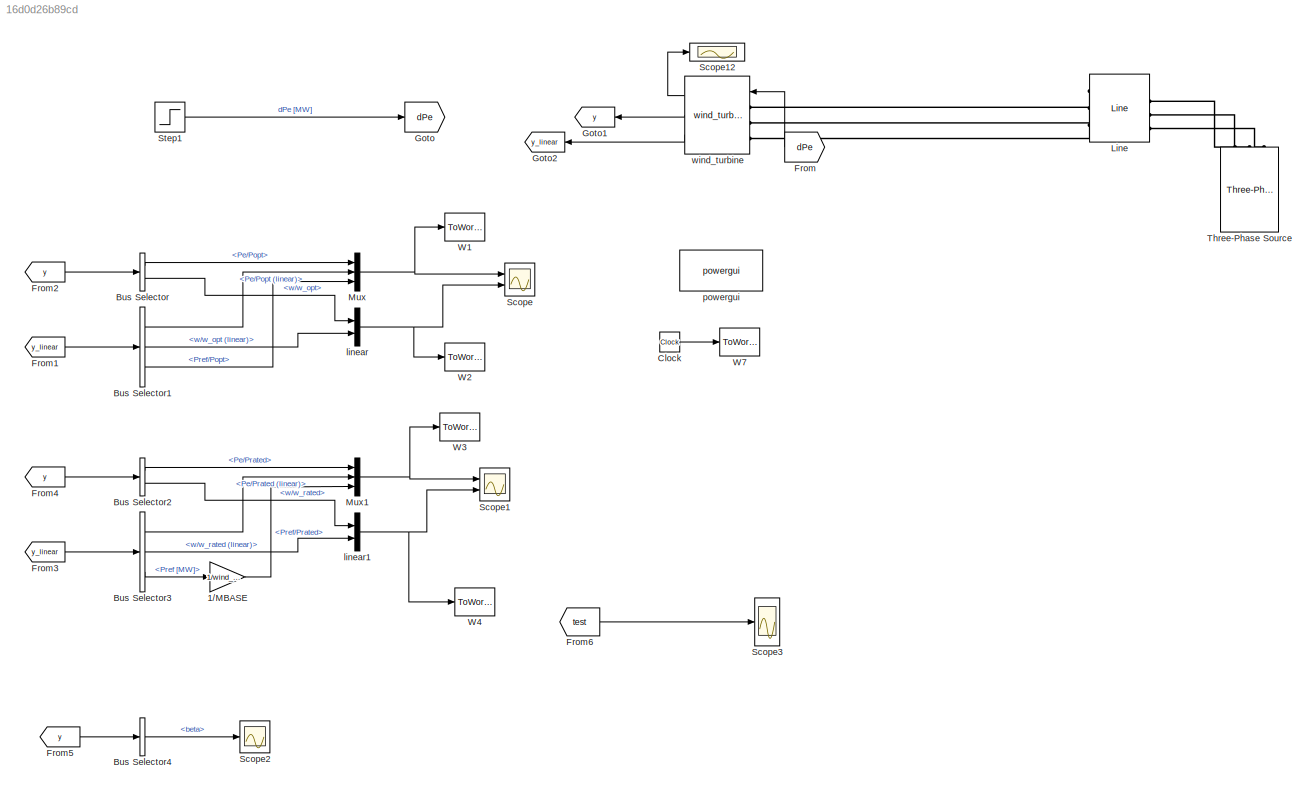
MODEL slx_16d0d26b89cd
KIND model
CONFIG AbsTol = 1e-1
CONFIG EnableMultiTasking = on
CONFIG FixedStep = auto
CONFIG MaxStep = 1/60
CONFIG MinStep = auto
CONFIG PreLoadFcn = %load_Nordic32_data;\n
CONFIG RelTol = 1e-2
CONFIG SampleTimeConstraint = Unconstrained
CONFIG Solver = ode15s
CONFIG SolverName = ode15s
CONFIG StartTime = 0.0
CONFIG StopTime = 200
BLOCK [Gain] 1//MBASE
  Gain = 1/wind_turbines.MBASE(1)
BLOCK [BusSelector] Bus Selector
  OutputSignals = Pe/Popt,w/w_opt
  Ports = [1, 2]
BLOCK [BusSelector] Bus Selector1
  OutputSignals = Pe/Popt (linear),w/w_opt (linear),Pref/Popt
  Ports = [1, 3]
BLOCK [BusSelector] Bus Selector2
  OutputSignals = Pe/Prated,w/w_rated
  Ports = [1, 2]
BLOCK [BusSelector] Bus Selector3
  OutputSignals = Pe/Prated (linear),w/w_rated (linear),Pref [MW]
  Ports = [1, 3]
BLOCK [BusSelector] Bus Selector4
  OutputSignals = beta
  Ports = [1, 1]
BLOCK [Clock] Clock
BLOCK [From] From
  GotoTag = dPe
  NameLocation = top
BLOCK [From] From1
  GotoTag = y_linear
  NameLocation = top
BLOCK [From] From2
  GotoTag = y
  NameLocation = top
BLOCK [From] From3
  GotoTag = y_linear
  NameLocation = top
BLOCK [From] From4
  GotoTag = y
  NameLocation = top
BLOCK [From] From5
  GotoTag = y
  NameLocation = top
BLOCK [From] From6
  GotoTag = test
BLOCK [Goto] Goto
  GotoTag = dPe
BLOCK [Goto] Goto1
  GotoTag = y
  NameLocation = top
BLOCK [Goto] Goto2
  GotoTag = y_linear
  NameLocation = top
BLOCK [Reference] Line  REF=Nordic32_Lib/Line
  Ports = [0, 1, 0, 0, 0, 3, 3]
  SourceBlock = Nordic32_Lib/Line
BLOCK [Mux] Mux
  DisplayOption = bar
  Inputs = 3
  Ports = [3, 1]
BLOCK [Mux] Mux1
  DisplayOption = bar
  Inputs = 3
  Ports = [3, 1]
BLOCK [Scope] Scope
  Floating = off
  NumInputPorts = 2
  Ports = [2]
  ScopeSpecificationString = Simulink.scopes.TimeScopeBlockCfg('CurrentConfiguration', extmgr.ConfigurationSet(extmgr.Configuration('Core','General UI',true),extmgr.Configuration('Core','Source UI',true),extmgr.Configuration('Sources','WiredSimulink',true,'DataLoggingVariableName','ScopeData1'),extmgr.Configuration('Visuals','Time Domain',true,'SerializedDisplays',{struct('MinYLimReal','-2.42569','MaxYLimReal','4.62613','YLab...<+2114ch>
BLOCK [Scope] Scope1
  Floating = off
  NumInputPorts = 2
  Ports = [2]
  ScopeSpecificationString = Simulink.scopes.TimeScopeBlockCfg('CurrentConfiguration', extmgr.ConfigurationSet(extmgr.Configuration('Core','General UI',true),extmgr.Configuration('Core','Source UI',true),extmgr.Configuration('Sources','WiredSimulink',true,'DataLoggingVariableName','ScopeData2'),extmgr.Configuration('Visuals','Time Domain',true,'SerializedDisplays',{struct('MinYLimReal','-88918.25778','MaxYLimReal','89004.4350...<+2124ch>
BLOCK [Scope] Scope12
  Floating = off
  NumInputPorts = 1
  Ports = [1]
  ScopeSpecificationString = Simulink.scopes.TimeScopeBlockCfg('CurrentConfiguration', extmgr.ConfigurationSet(extmgr.Configuration('Core','General UI',true),extmgr.Configuration('Core','Source UI',true),extmgr.Configuration('Sources','WiredSimulink',true,'DataLoggingVariableName','ScopeData4'),extmgr.Configuration('Visuals','Time Domain',true,'SerializedDisplays',{struct('MinYLimReal','5.1257','MaxYLimReal','13.24515','YLabe...<+1408ch>
BLOCK [Scope] Scope2
  Floating = off
  NumInputPorts = 1
  Ports = [1]
  ScopeSpecificationString = Simulink.scopes.TimeScopeBlockCfg('CurrentConfiguration', extmgr.ConfigurationSet(extmgr.Configuration('Core','General UI',true),extmgr.Configuration('Core','Source UI',true),extmgr.Configuration('Sources','WiredSimulink',true,'DataLoggingVariableName','ScopeData3'),extmgr.Configuration('Visuals','Time Domain',true,'SerializedDisplays',{struct('MinYLimReal','-1.00000','MaxYLimReal','1.00000','YLab...<+1396ch>
BLOCK [Scope] Scope3
  Floating = off
  NumInputPorts = 1
  Ports = [1]
  ScopeSpecificationString = Simulink.scopes.TimeScopeBlockCfg('CurrentConfiguration', extmgr.ConfigurationSet(extmgr.Configuration('Core','General UI',true),extmgr.Configuration('Core','Source UI',true),extmgr.Configuration('Sources','WiredSimulink',true,'DataLoggingVariableName','ScopeData1'),extmgr.Configuration('Visuals','Time Domain',true,'SerializedDisplays',{struct('MinYLimReal','-1007.71729','MaxYLimReal','9068.97296'...<+1389ch>
BLOCK [Step] Step1
  After = 1-pstep
  Before = 1
  SampleTime = 0
  Time = time_event
BLOCK [Reference] Three-Phase Source  REF=powerlib/Electrical
Sources/Three-Phase Source
  NameLocation = right
  Ports = [0, 0, 0, 0, 0, 0, 3]
  SourceBlock = powerlib/Electrical\nSources/Three-Phase Source
  SourceProductBaseCode = PS
  SourceType = Three-Phase Source
BLOCK [ToWorkspace] W1
  MaxDataPoints = inf
  Ports = [1]
  SampleTime = 1/60
  VariableName = Pe
BLOCK [ToWorkspace] W2
  MaxDataPoints = inf
  Ports = [1]
  SampleTime = 1/60
  VariableName = w_rot
BLOCK [ToWorkspace] W3
  MaxDataPoints = inf
  Ports = [1]
  SampleTime = 1/60
  VariableName = Pe_abs
BLOCK [ToWorkspace] W4
  MaxDataPoints = inf
  Ports = [1]
  SampleTime = 1/60
  VariableName = w_rot_abs
BLOCK [ToWorkspace] W7
  MaxDataPoints = inf
  Ports = [1]
  SampleTime = 1/60
  VariableName = t
BLOCK [Mux] linear
  DisplayOption = bar
  Inputs = 2
  Ports = [2, 1]
BLOCK [Mux] linear1
  DisplayOption = bar
  Inputs = 2
  Ports = [2, 1]
BLOCK [Reference] powergui  REF=powerlib/powergui
  Ports = []
  Priority = 2
  SourceBlock = powerlib/powergui
  SourceProductBaseCode = PS
  SourceType = PSB option menu block
BLOCK [Reference] wind_turbine  REF=Nordic32_Lib/wind_turbine
  Ports = [1, 3, 0, 0, 0, 3]
  SourceBlock = Nordic32_Lib/wind_turbine
LINE 1//MBASE:1 -> Mux1:3
LINE Bus Selector1:1 -> Mux:2
LINE Bus Selector1:2 -> linear:2
LINE Bus Selector1:3 -> Mux:3
LINE Bus Selector2:1 -> Mux1:1
LINE Bus Selector2:2 -> linear1:1
LINE Bus Selector3:1 -> Mux1:2
LINE Bus Selector3:2 -> linear1:2
LINE Bus Selector3:3 -> 1//MBASE:1
LINE Bus Selector4:1 -> Scope2:1
LINE Bus Selector:1 -> Mux:1
LINE Bus Selector:2 -> linear:1
LINE Clock:1 -> W7:1
LINE From1:1 -> Bus Selector1:1
LINE From2:1 -> Bus Selector:1
LINE From3:1 -> Bus Selector3:1
LINE From4:1 -> Bus Selector2:1
LINE From5:1 -> Bus Selector4:1
LINE From6:1 -> Scope3:1
LINE From:1 -> wind_turbine:1
NET Mux1:1 -> Scope1:1, W3:1
NET Mux:1 -> Scope:1, W1:1
LINE Step1:1 -> Goto:1
NET linear1:1 -> Scope1:2, W4:1
NET linear:1 -> Scope:2, W2:1
LINE wind_turbine:1 -> Scope12:1
LINE wind_turbine:2 -> Goto1:1
LINE wind_turbine:3 -> Goto2:1
PLINE Line:LConn1 -- wind_turbine:LConn1
PLINE Line:LConn2 -- wind_turbine:LConn2
PLINE Line:LConn3 -- wind_turbine:LConn3
PLINE Line:RConn1 -- Three-Phase Source:RConn1
PLINE Line:RConn2 -- Three-Phase Source:RConn2
PLINE Line:RConn3 -- Three-Phase Source:RConn3
note: NET lines group one-source signal fan-out (src -> all destinations, sorted); 1:1 wires keep LINE
